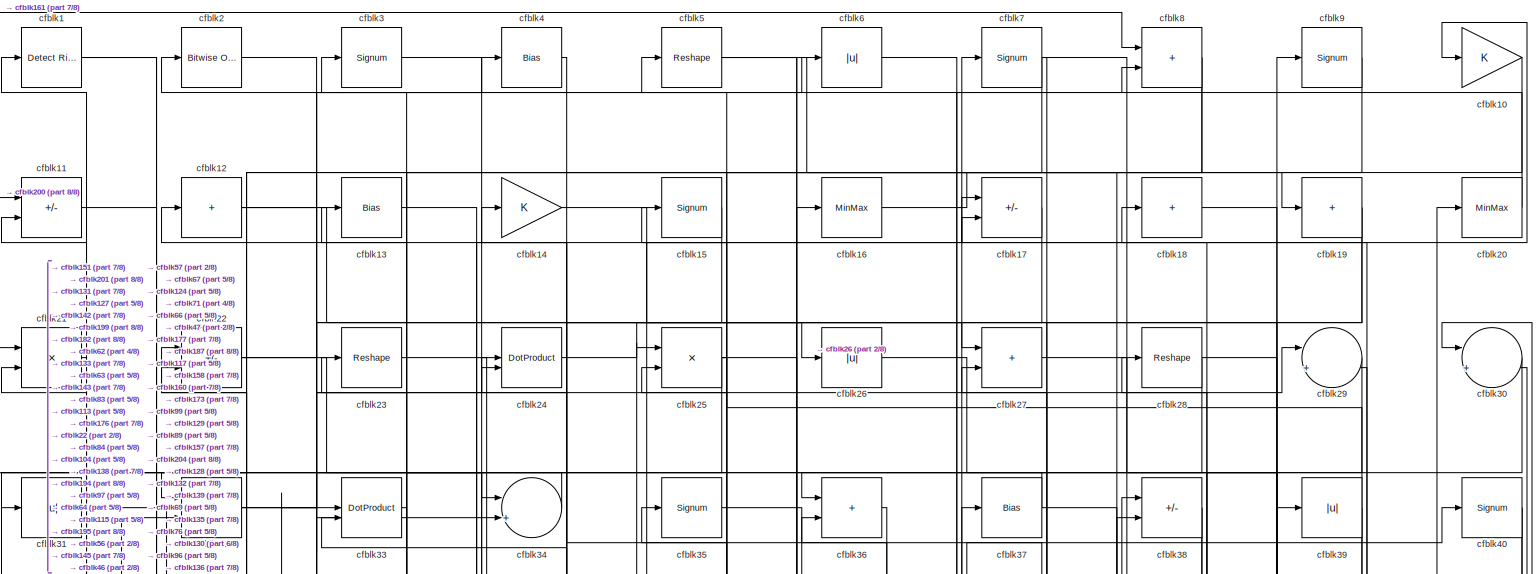
[diagram: root canvas - part 1/8, full width, top band]
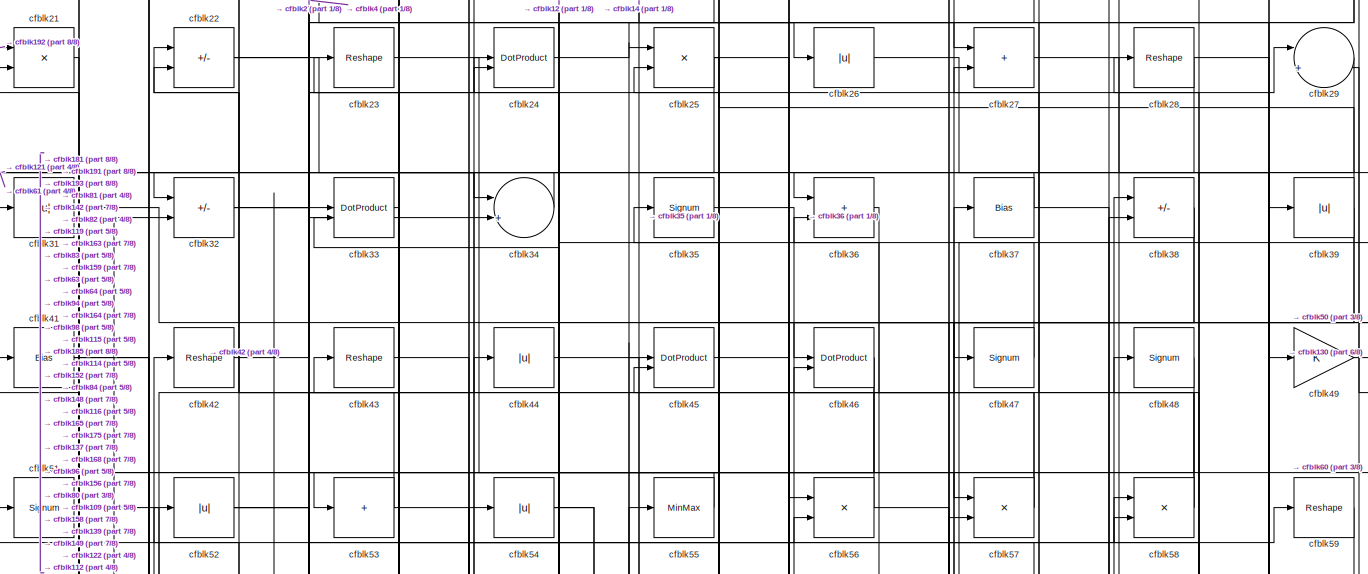
[diagram: root canvas - part 2/8, full width, top band]
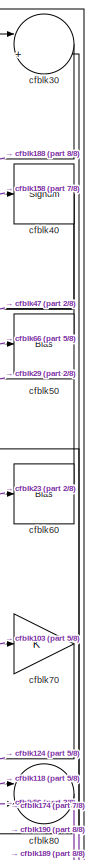
[diagram: root canvas - part 3/8, top right region]
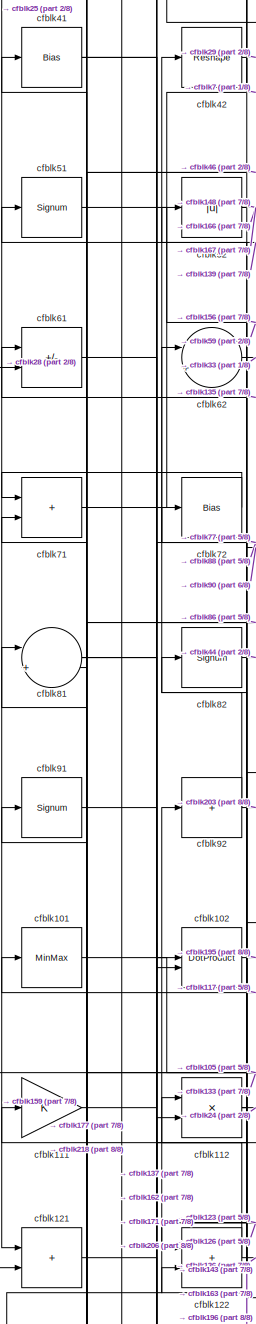
[diagram: root canvas - part 4/8, middle left region]
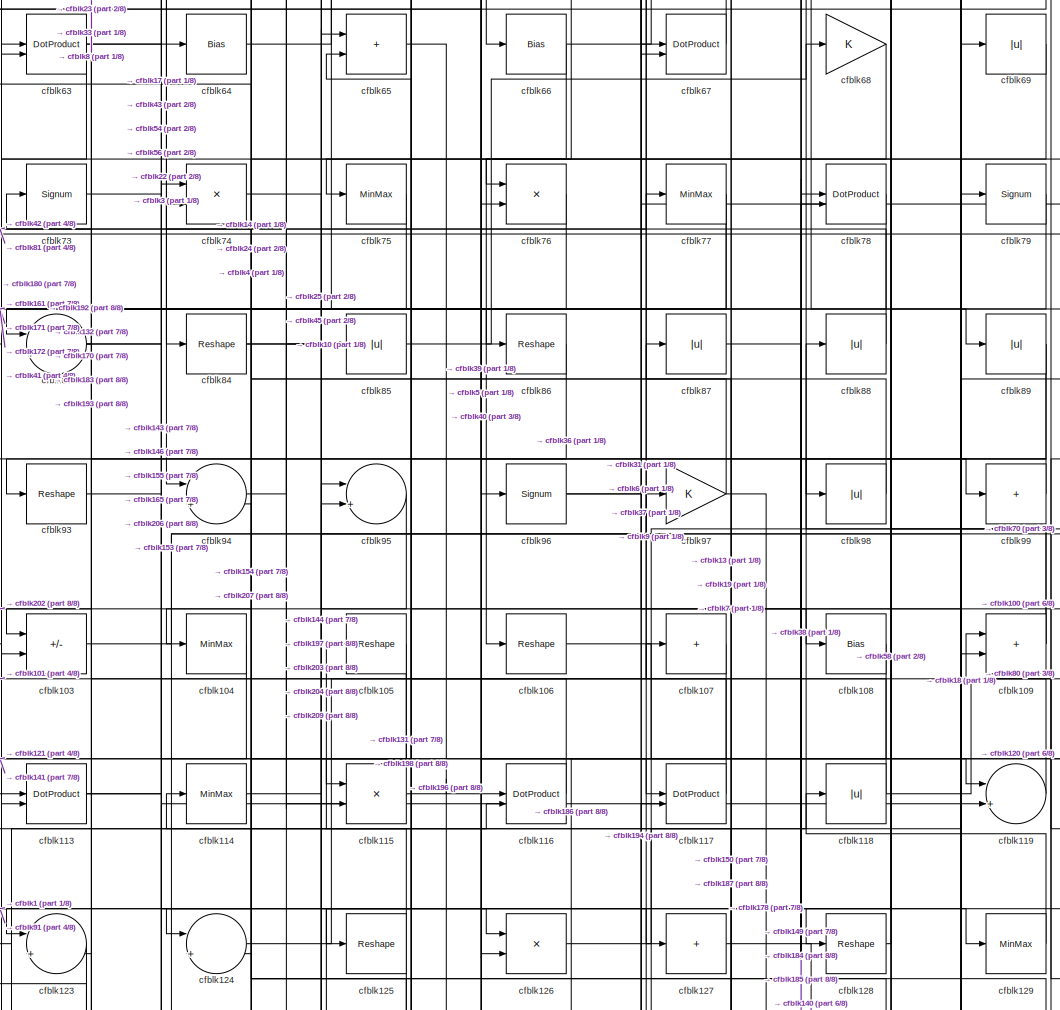
[diagram: root canvas - part 5/8, central region]
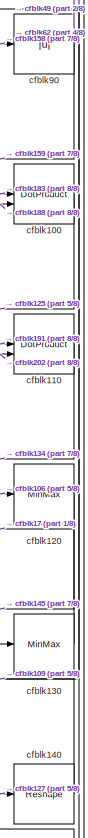
[diagram: root canvas - part 6/8, middle right region]
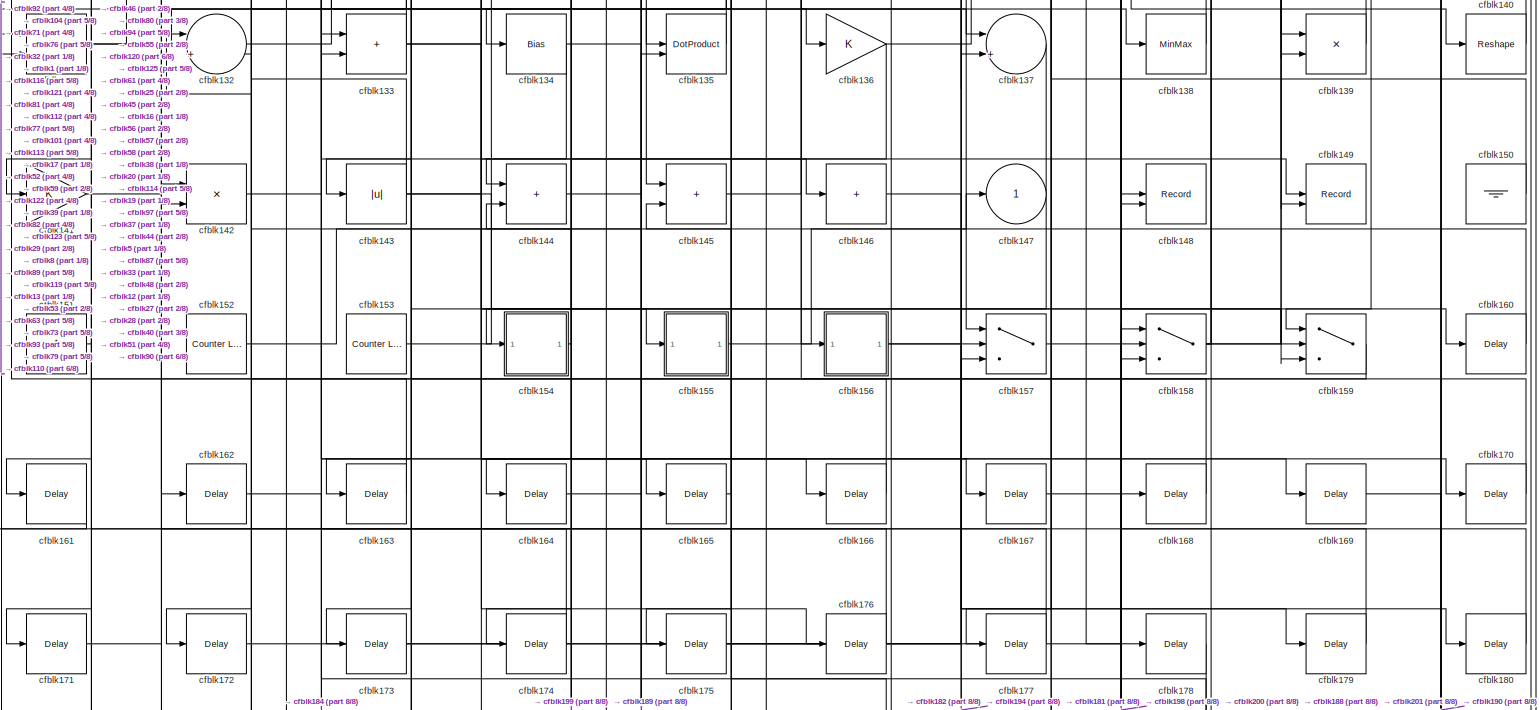
[diagram: root canvas - part 7/8, full width, bottom band]
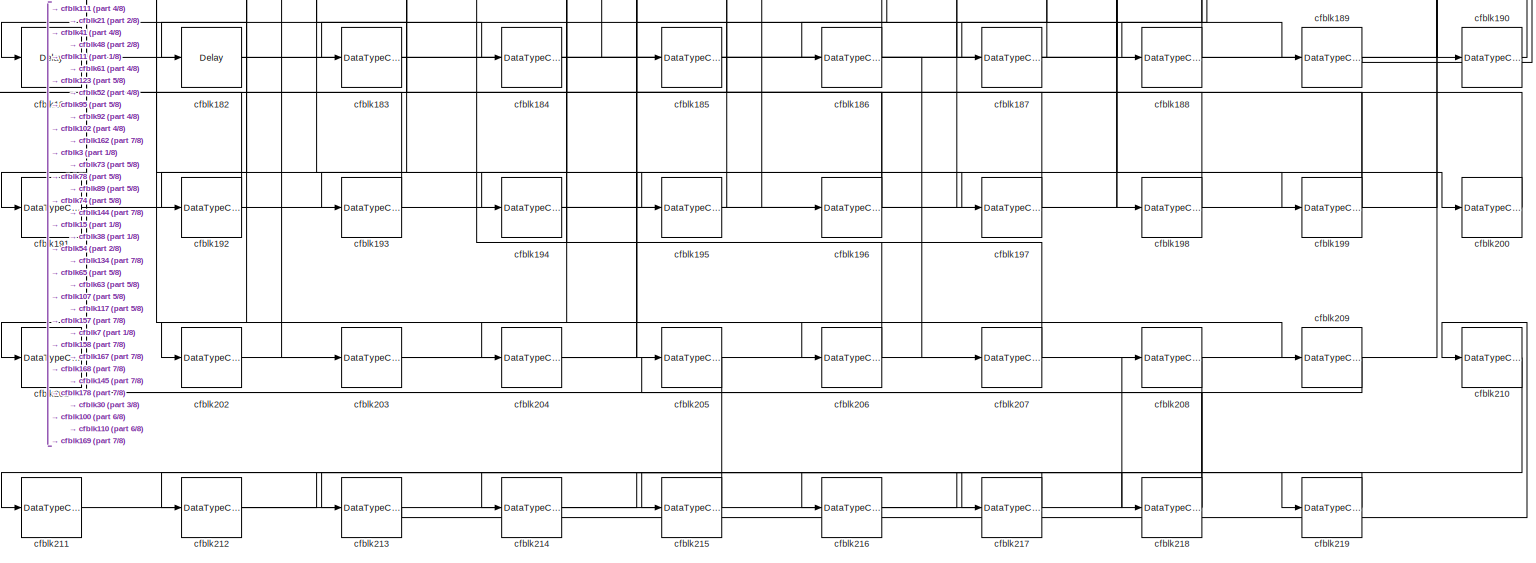
[diagram: root canvas - part 8/8, full width, bottom band]
MODEL slx_567b70e88bf7
KIND model
CONFIG AbsTol = auto
CONFIG EnableMultiTasking = off
CONFIG FixedStep = auto
CONFIG MaxStep = auto
CONFIG MinStep = auto
CONFIG RelTol = 1e-3
CONFIG SampleTimeConstraint = Unconstrained
CONFIG SolverName = VariableStepAuto
CONFIG StartTime = 0.0
CONFIG StopTime = 10.0
BLOCK [Reference] cfblk1  REF=hdlsllib/Logic and Bit
Operations/Detect Rise
Positive
  SourceBlock = hdlsllib/Logic and Bit\nOperations/Detect Rise\nPositive
  SourceType = Detect Rise Positive
BLOCK [Gain] cfblk10
BLOCK [DotProduct] cfblk100
  OutDataTypeStr = Inherit: Inherit via internal rule
BLOCK [MinMax] cfblk101
BLOCK [DotProduct] cfblk102
  OutDataTypeStr = Inherit: Inherit via internal rule
BLOCK [Sum] cfblk103
  IconShape = rectangular
  Inputs = +-
BLOCK [MinMax] cfblk104
BLOCK [Reshape] cfblk105
BLOCK [Reshape] cfblk106
BLOCK [Sum] cfblk107
  IconShape = rectangular
  Inputs = +
BLOCK [Bias] cfblk108
  Bias = 0.0
  SaturateOnIntegerOverflow = off
BLOCK [Sum] cfblk109
  IconShape = rectangular
BLOCK [Sum] cfblk11
  IconShape = rectangular
  Inputs = +-
BLOCK [DotProduct] cfblk110
  OutDataTypeStr = Inherit: Inherit via internal rule
BLOCK [Gain] cfblk111
BLOCK [Product] cfblk112
  Inputs = */
  RndMeth = Zero
  SaturateOnIntegerOverflow = on
BLOCK [DotProduct] cfblk113
  OutDataTypeStr = Inherit: Inherit via internal rule
BLOCK [MinMax] cfblk114
BLOCK [Product] cfblk115
  Inputs = */
  RndMeth = Zero
  SaturateOnIntegerOverflow = on
BLOCK [DotProduct] cfblk116
  OutDataTypeStr = Inherit: Inherit via internal rule
BLOCK [DotProduct] cfblk117
  OutDataTypeStr = Inherit: Inherit via internal rule
BLOCK [Abs] cfblk118
  SaturateOnIntegerOverflow = off
BLOCK [Sum] cfblk119
  Inputs = |++
BLOCK [Sum] cfblk12
  IconShape = rectangular
  Inputs = +
BLOCK [MinMax] cfblk120
BLOCK [Sum] cfblk121
  IconShape = rectangular
BLOCK [Sum] cfblk122
  IconShape = rectangular
BLOCK [Sum] cfblk123
  Inputs = |++
BLOCK [Sum] cfblk124
  Inputs = |++
BLOCK [Reshape] cfblk125
BLOCK [Product] cfblk126
  Inputs = */
  RndMeth = Zero
  SaturateOnIntegerOverflow = on
BLOCK [Sum] cfblk127
  IconShape = rectangular
  Inputs = +
BLOCK [Reshape] cfblk128
BLOCK [MinMax] cfblk129
BLOCK [Bias] cfblk13
  Bias = 0.0
  SaturateOnIntegerOverflow = off
BLOCK [MinMax] cfblk130
BLOCK [Sum] cfblk131
  IconShape = rectangular
BLOCK [Sum] cfblk132
  Inputs = |++
BLOCK [Sum] cfblk133
  IconShape = rectangular
BLOCK [Bias] cfblk134
  Bias = 0.0
  SaturateOnIntegerOverflow = off
BLOCK [DotProduct] cfblk135
  OutDataTypeStr = Inherit: Inherit via internal rule
BLOCK [Gain] cfblk136
BLOCK [Sum] cfblk137
  Inputs = |++
BLOCK [MinMax] cfblk138
BLOCK [Product] cfblk139
  Inputs = */
  RndMeth = Zero
  SaturateOnIntegerOverflow = on
BLOCK [Gain] cfblk14
BLOCK [Reshape] cfblk140
BLOCK [Gain] cfblk141
BLOCK [Product] cfblk142
  Inputs = */
  RndMeth = Zero
  SaturateOnIntegerOverflow = on
BLOCK [Abs] cfblk143
  SaturateOnIntegerOverflow = off
BLOCK [Sum] cfblk144
  IconShape = rectangular
BLOCK [Sum] cfblk145
  IconShape = rectangular
BLOCK [Sum] cfblk146
  IconShape = rectangular
  Inputs = +
BLOCK [Outport] cfblk147
  VectorParamsAs1DForOutWhenUnconnected = off
BLOCK [Record] cfblk148
  CompatibilityTag = XY
  FileSettingsInternal = {"entries":[{"content":{"excelSettings":{"content":{},"type":"Streamout.ExcelSettings"}},"type":"Streamout.FileSettingStorage","uuid":""}],"packageUris":["http:\/\/schema.mathworks.com\/mf0\/streamout_blocks\/R2020a"],"version":"1.0"}
  Layout = [1 1]
  SignalsInternal = {"entries":[{"content":{"signals":[{"content":{"blockPath":[],"dimensions":[1],"domain":"","lineColor":"#a2142f","plots":[1],"port":1,"signalID":3280,"signalName":"XY Graph:1"},"type":"RecordBlkView.Signal","uuid":""},{"content":{"blockPath":[],"dimensions":[1],"domain":"","lineColor":"#139fff","plots":[1],"port":2,"signalID":3283,"signalName":"XY Graph:2"},"type":"RecordBlkView.Signal","uuid":""}...<+146ch>
  VisualizationBindings = {"xyplotplugin":{"info":[{"series":[{"bindingParametersList":[{"parameter":"X-Axis","signalID":3280,"signalName":"XY Graph:1"},{"parameter":"Y-Axis","signalID":3283,"signalName":"XY Graph:2"}],"seriesID":52436}],"subplotID":1}]}}
  st = -1
BLOCK [Record] cfblk149
  CompatibilityTag = XY
  FileSettingsInternal = {"entries":[{"content":{"excelSettings":{"content":{},"type":"Streamout.ExcelSettings"}},"type":"Streamout.FileSettingStorage","uuid":""}],"packageUris":["http:\/\/schema.mathworks.com\/mf0\/streamout_blocks\/R2020a"],"version":"1.0"}
  Layout = [1 1]
  SignalsInternal = {"entries":[{"content":{"signals":[{"content":{"blockPath":[],"dimensions":[1],"domain":"","lineColor":"#a2142f","plots":[1],"port":1,"signalID":3288,"signalName":"XY Graph:1"},"type":"RecordBlkView.Signal","uuid":""},{"content":{"blockPath":[],"dimensions":[1],"domain":"","lineColor":"#139fff","plots":[1],"port":2,"signalID":3291,"signalName":"XY Graph:2"},"type":"RecordBlkView.Signal","uuid":""}...<+146ch>
  VisualizationBindings = {"xyplotplugin":{"info":[{"series":[{"bindingParametersList":[{"parameter":"X-Axis","signalID":3288,"signalName":"XY Graph:1"},{"parameter":"Y-Axis","signalID":3291,"signalName":"XY Graph:2"}],"seriesID":62969}],"subplotID":1}]}}
  st = -1
BLOCK [Signum] cfblk15
BLOCK [Ground] cfblk150
BLOCK [Constant] cfblk151
  SampleTime = -1
BLOCK [Reference] cfblk152  REF=hdlsllib/Sources/Counter
Limited
  SourceBlock = hdlsllib/Sources/Counter\nLimited
  SourceType = Counter Limited
BLOCK [Reference] cfblk153  REF=hdlsllib/Sources/Counter
Limited
  SourceBlock = hdlsllib/Sources/Counter\nLimited
  SourceType = Counter Limited
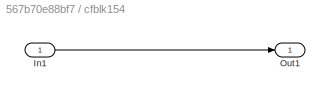
BLOCK [SubSystem] cfblk154
  LibrarySourceBlock = hdlsllib/Ports &\nSubsystems/Subsystem
BLOCK [Inport] cfblk154/In1
BLOCK [Outport] cfblk154/Out1
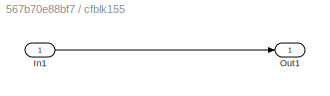
BLOCK [SubSystem] cfblk155
  LibrarySourceBlock = hdlsllib/Ports &\nSubsystems/Subsystem
BLOCK [Inport] cfblk155/In1
BLOCK [Outport] cfblk155/Out1
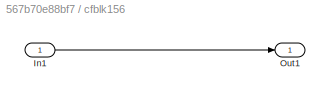
BLOCK [SubSystem] cfblk156
  LibrarySourceBlock = hdlsllib/Ports &\nSubsystems/Subsystem
BLOCK [Inport] cfblk156/In1
BLOCK [Outport] cfblk156/Out1
BLOCK [Switch] cfblk157
  InputSameDT = off
  SaturateOnIntegerOverflow = off
BLOCK [Switch] cfblk158
  InputSameDT = off
  SaturateOnIntegerOverflow = off
BLOCK [Switch] cfblk159
  InputSameDT = off
  SaturateOnIntegerOverflow = off
BLOCK [MinMax] cfblk16
BLOCK [Delay] cfblk160
  InputPortMap = u0
  SampleTime = 1
BLOCK [Delay] cfblk161
  InputPortMap = u0
  SampleTime = 1
BLOCK [Delay] cfblk162
  InputPortMap = u0
  SampleTime = 1
BLOCK [Delay] cfblk163
  InputPortMap = u0
  SampleTime = 1
BLOCK [Delay] cfblk164
  InputPortMap = u0
  SampleTime = 1
BLOCK [Delay] cfblk165
  InputPortMap = u0
  SampleTime = 1
BLOCK [Delay] cfblk166
  InputPortMap = u0
  SampleTime = 1
BLOCK [Delay] cfblk167
  InputPortMap = u0
  SampleTime = 1
BLOCK [Delay] cfblk168
  InputPortMap = u0
  SampleTime = 1
BLOCK [Delay] cfblk169
  InputPortMap = u0
  SampleTime = 1
BLOCK [Sum] cfblk17
  IconShape = rectangular
  Inputs = +-
BLOCK [Delay] cfblk170
  InputPortMap = u0
  SampleTime = 1
BLOCK [Delay] cfblk171
  InputPortMap = u0
  SampleTime = 1
BLOCK [Delay] cfblk172
  InputPortMap = u0
  SampleTime = 1
BLOCK [Delay] cfblk173
  InputPortMap = u0
  SampleTime = 1
BLOCK [Delay] cfblk174
  InputPortMap = u0
  SampleTime = 1
BLOCK [Delay] cfblk175
  InputPortMap = u0
  SampleTime = 1
BLOCK [Delay] cfblk176
  InputPortMap = u0
  SampleTime = 1
BLOCK [Delay] cfblk177
  InputPortMap = u0
  SampleTime = 1
BLOCK [Delay] cfblk178
  InputPortMap = u0
  SampleTime = 1
BLOCK [Delay] cfblk179
  InputPortMap = u0
  SampleTime = 1
BLOCK [Sum] cfblk18
  IconShape = rectangular
  Inputs = +
BLOCK [Delay] cfblk180
  InputPortMap = u0
  SampleTime = 1
BLOCK [Delay] cfblk181
  InputPortMap = u0
  SampleTime = 1
BLOCK [Delay] cfblk182
  InputPortMap = u0
  SampleTime = 1
BLOCK [DataTypeConversion] cfblk183
  OutDataTypeStr = uint8
  RndMeth = Floor
  SaturateOnIntegerOverflow = off
BLOCK [DataTypeConversion] cfblk184
  OutDataTypeStr = uint8
  RndMeth = Floor
  SaturateOnIntegerOverflow = off
BLOCK [DataTypeConversion] cfblk185
  OutDataTypeStr = uint8
  RndMeth = Floor
  SaturateOnIntegerOverflow = off
BLOCK [DataTypeConversion] cfblk186
  RndMeth = Floor
  SaturateOnIntegerOverflow = off
BLOCK [DataTypeConversion] cfblk187
  OutDataTypeStr = uint8
  RndMeth = Floor
  SaturateOnIntegerOverflow = off
BLOCK [DataTypeConversion] cfblk188
  RndMeth = Floor
  SaturateOnIntegerOverflow = off
BLOCK [DataTypeConversion] cfblk189
  OutDataTypeStr = uint8
  RndMeth = Floor
  SaturateOnIntegerOverflow = off
BLOCK [Sum] cfblk19
  IconShape = rectangular
  Inputs = +
BLOCK [DataTypeConversion] cfblk190
  OutDataTypeStr = uint8
  RndMeth = Floor
  SaturateOnIntegerOverflow = off
BLOCK [DataTypeConversion] cfblk191
  OutDataTypeStr = uint8
  RndMeth = Floor
  SaturateOnIntegerOverflow = off
BLOCK [DataTypeConversion] cfblk192
  OutDataTypeStr = uint8
  RndMeth = Floor
  SaturateOnIntegerOverflow = off
BLOCK [DataTypeConversion] cfblk193
  OutDataTypeStr = uint8
  RndMeth = Floor
  SaturateOnIntegerOverflow = off
BLOCK [DataTypeConversion] cfblk194
  RndMeth = Floor
  SaturateOnIntegerOverflow = off
BLOCK [DataTypeConversion] cfblk195
  OutDataTypeStr = uint8
  RndMeth = Floor
  SaturateOnIntegerOverflow = off
BLOCK [DataTypeConversion] cfblk196
  RndMeth = Floor
  SaturateOnIntegerOverflow = off
BLOCK [DataTypeConversion] cfblk197
  OutDataTypeStr = uint8
  RndMeth = Floor
  SaturateOnIntegerOverflow = off
BLOCK [DataTypeConversion] cfblk198
  OutDataTypeStr = uint8
  RndMeth = Floor
  SaturateOnIntegerOverflow = off
BLOCK [DataTypeConversion] cfblk199
  RndMeth = Floor
  SaturateOnIntegerOverflow = off
BLOCK [Reference] cfblk2  REF=simulink/Logic and Bit
Operations/Bitwise
Operator
  LibrarySourceBlock = hdlsllib/Logic and Bit\nOperations/Bitwise\nOperator
  SourceBlock = simulink/Logic and Bit\nOperations/Bitwise\nOperator
  SourceType = Bitwise Operator
BLOCK [MinMax] cfblk20
BLOCK [DataTypeConversion] cfblk200
  OutDataTypeStr = uint8
  RndMeth = Floor
  SaturateOnIntegerOverflow = off
BLOCK [DataTypeConversion] cfblk201
  OutDataTypeStr = uint8
  RndMeth = Floor
  SaturateOnIntegerOverflow = off
BLOCK [DataTypeConversion] cfblk202
  OutDataTypeStr = uint8
  RndMeth = Floor
  SaturateOnIntegerOverflow = off
BLOCK [DataTypeConversion] cfblk203
  OutDataTypeStr = uint8
  RndMeth = Floor
  SaturateOnIntegerOverflow = off
BLOCK [DataTypeConversion] cfblk204
  OutDataTypeStr = uint8
  RndMeth = Floor
  SaturateOnIntegerOverflow = off
BLOCK [DataTypeConversion] cfblk205
  RndMeth = Floor
  SaturateOnIntegerOverflow = off
BLOCK [DataTypeConversion] cfblk206
  OutDataTypeStr = uint8
  RndMeth = Floor
  SaturateOnIntegerOverflow = off
BLOCK [DataTypeConversion] cfblk207
  OutDataTypeStr = uint8
  RndMeth = Floor
  SaturateOnIntegerOverflow = off
BLOCK [DataTypeConversion] cfblk208
  RndMeth = Floor
  SaturateOnIntegerOverflow = off
BLOCK [DataTypeConversion] cfblk209
  OutDataTypeStr = uint8
  RndMeth = Floor
  SaturateOnIntegerOverflow = off
BLOCK [Product] cfblk21
  Inputs = */
  RndMeth = Zero
  SaturateOnIntegerOverflow = on
BLOCK [DataTypeConversion] cfblk210
  RndMeth = Floor
  SaturateOnIntegerOverflow = off
BLOCK [DataTypeConversion] cfblk211
  OutDataTypeStr = uint8
  RndMeth = Floor
  SaturateOnIntegerOverflow = off
BLOCK [DataTypeConversion] cfblk212
  RndMeth = Floor
  SaturateOnIntegerOverflow = off
BLOCK [DataTypeConversion] cfblk213
  OutDataTypeStr = uint8
  RndMeth = Floor
  SaturateOnIntegerOverflow = off
BLOCK [DataTypeConversion] cfblk214
  RndMeth = Floor
  SaturateOnIntegerOverflow = off
BLOCK [DataTypeConversion] cfblk215
  OutDataTypeStr = uint8
  RndMeth = Floor
  SaturateOnIntegerOverflow = off
BLOCK [DataTypeConversion] cfblk216
  RndMeth = Floor
  SaturateOnIntegerOverflow = off
BLOCK [DataTypeConversion] cfblk217
  OutDataTypeStr = uint8
  RndMeth = Floor
  SaturateOnIntegerOverflow = off
BLOCK [DataTypeConversion] cfblk218
  RndMeth = Floor
  SaturateOnIntegerOverflow = off
BLOCK [DataTypeConversion] cfblk219
  OutDataTypeStr = uint8
  RndMeth = Floor
  SaturateOnIntegerOverflow = off
BLOCK [Sum] cfblk22
  IconShape = rectangular
  Inputs = +-
BLOCK [Reshape] cfblk23
BLOCK [DotProduct] cfblk24
  OutDataTypeStr = Inherit: Inherit via internal rule
BLOCK [Product] cfblk25
  Inputs = */
  RndMeth = Zero
  SaturateOnIntegerOverflow = on
BLOCK [Abs] cfblk26
  SaturateOnIntegerOverflow = off
BLOCK [Sum] cfblk27
  IconShape = rectangular
BLOCK [Reshape] cfblk28
BLOCK [Sum] cfblk29
  Inputs = |++
BLOCK [Signum] cfblk3
BLOCK [Sum] cfblk30
  Inputs = |++
BLOCK [Abs] cfblk31
  SaturateOnIntegerOverflow = off
BLOCK [Sum] cfblk32
  IconShape = rectangular
  Inputs = +-
BLOCK [DotProduct] cfblk33
  OutDataTypeStr = Inherit: Inherit via internal rule
BLOCK [Sum] cfblk34
  Inputs = |++
BLOCK [Signum] cfblk35
BLOCK [Sum] cfblk36
  IconShape = rectangular
BLOCK [Bias] cfblk37
  Bias = 0.0
  SaturateOnIntegerOverflow = off
BLOCK [Sum] cfblk38
  IconShape = rectangular
  Inputs = +-
BLOCK [Abs] cfblk39
  SaturateOnIntegerOverflow = off
BLOCK [Bias] cfblk4
  Bias = 0.0
  SaturateOnIntegerOverflow = off
BLOCK [Signum] cfblk40
BLOCK [Bias] cfblk41
  Bias = 0.0
  SaturateOnIntegerOverflow = off
BLOCK [Reshape] cfblk42
BLOCK [Reshape] cfblk43
BLOCK [Abs] cfblk44
  SaturateOnIntegerOverflow = off
BLOCK [DotProduct] cfblk45
  OutDataTypeStr = Inherit: Inherit via internal rule
BLOCK [DotProduct] cfblk46
  OutDataTypeStr = Inherit: Inherit via internal rule
BLOCK [Signum] cfblk47
BLOCK [Signum] cfblk48
BLOCK [Gain] cfblk49
BLOCK [Reshape] cfblk5
BLOCK [Bias] cfblk50
  Bias = 0.0
  SaturateOnIntegerOverflow = off
BLOCK [Signum] cfblk51
BLOCK [Abs] cfblk52
  SaturateOnIntegerOverflow = off
BLOCK [Sum] cfblk53
  IconShape = rectangular
  Inputs = +
BLOCK [Abs] cfblk54
  SaturateOnIntegerOverflow = off
BLOCK [MinMax] cfblk55
BLOCK [Product] cfblk56
  Inputs = */
  RndMeth = Zero
  SaturateOnIntegerOverflow = on
BLOCK [Product] cfblk57
  Inputs = */
  RndMeth = Zero
  SaturateOnIntegerOverflow = on
BLOCK [Product] cfblk58
  Inputs = */
  RndMeth = Zero
  SaturateOnIntegerOverflow = on
BLOCK [Reshape] cfblk59
BLOCK [Abs] cfblk6
  SaturateOnIntegerOverflow = off
BLOCK [Bias] cfblk60
  Bias = 0.0
  SaturateOnIntegerOverflow = off
BLOCK [Sum] cfblk61
  IconShape = rectangular
  Inputs = +-
BLOCK [Sum] cfblk62
  Inputs = |++
BLOCK [DotProduct] cfblk63
  OutDataTypeStr = Inherit: Inherit via internal rule
BLOCK [Bias] cfblk64
  Bias = 0.0
  SaturateOnIntegerOverflow = off
BLOCK [Sum] cfblk65
  IconShape = rectangular
BLOCK [Bias] cfblk66
  Bias = 0.0
  SaturateOnIntegerOverflow = off
BLOCK [DotProduct] cfblk67
  OutDataTypeStr = Inherit: Inherit via internal rule
BLOCK [Gain] cfblk68
BLOCK [Abs] cfblk69
  SaturateOnIntegerOverflow = off
BLOCK [Signum] cfblk7
BLOCK [Gain] cfblk70
BLOCK [Sum] cfblk71
  IconShape = rectangular
BLOCK [Bias] cfblk72
  Bias = 0.0
  SaturateOnIntegerOverflow = off
BLOCK [Signum] cfblk73
BLOCK [Product] cfblk74
  Inputs = */
  RndMeth = Zero
  SaturateOnIntegerOverflow = on
BLOCK [MinMax] cfblk75
BLOCK [Product] cfblk76
  Inputs = */
  RndMeth = Zero
  SaturateOnIntegerOverflow = on
BLOCK [MinMax] cfblk77
BLOCK [DotProduct] cfblk78
  OutDataTypeStr = Inherit: Inherit via internal rule
BLOCK [Signum] cfblk79
BLOCK [Sum] cfblk8
  IconShape = rectangular
BLOCK [Sum] cfblk80
  Inputs = |++
BLOCK [Sum] cfblk81
  Inputs = |++
BLOCK [Signum] cfblk82
BLOCK [Sum] cfblk83
  Inputs = |++
BLOCK [Reshape] cfblk84
BLOCK [Abs] cfblk85
  SaturateOnIntegerOverflow = off
BLOCK [Reshape] cfblk86
BLOCK [Abs] cfblk87
  SaturateOnIntegerOverflow = off
BLOCK [Abs] cfblk88
  SaturateOnIntegerOverflow = off
BLOCK [Abs] cfblk89
  SaturateOnIntegerOverflow = off
BLOCK [Signum] cfblk9
BLOCK [Abs] cfblk90
  SaturateOnIntegerOverflow = off
BLOCK [Signum] cfblk91
BLOCK [Sum] cfblk92
  IconShape = rectangular
  Inputs = +
BLOCK [Reshape] cfblk93
BLOCK [Sum] cfblk94
  Inputs = |++
BLOCK [Sum] cfblk95
  Inputs = |++
BLOCK [Signum] cfblk96
BLOCK [Gain] cfblk97
BLOCK [Abs] cfblk98
  SaturateOnIntegerOverflow = off
BLOCK [Sum] cfblk99
  IconShape = rectangular
  Inputs = +
LINE cfblk100:1 -> cfblk125:1
LINE cfblk101:1 -> cfblk133:1
LINE cfblk102:1 -> cfblk195:1
LINE cfblk103:1 -> cfblk70:1
LINE cfblk104:1 -> cfblk141:1
NET cfblk105:1 -> cfblk121:2, cfblk124:2
LINE cfblk106:1 -> cfblk120:1
LINE cfblk107:1 -> cfblk186:1
LINE cfblk108:1 -> cfblk126:2
NET cfblk109:1 -> cfblk58:2, cfblk88:1
LINE cfblk10:1 -> cfblk115:1
LINE cfblk110:1 -> cfblk134:1
LINE cfblk111:1 -> cfblk102:1
NET cfblk112:1 -> cfblk24:2, cfblk72:1
NET cfblk113:1 -> cfblk129:1, cfblk17:2
LINE cfblk114:1 -> cfblk25:1
LINE cfblk115:1 -> cfblk116:1
LINE cfblk116:1 -> cfblk25:2
LINE cfblk117:1 -> cfblk101:1
NET cfblk118:1 -> cfblk80:1, cfblk87:1
LINE cfblk119:1 -> cfblk43:1
LINE cfblk11:1 -> cfblk199:1
LINE cfblk120:1 -> cfblk145:1
LINE cfblk121:1 -> cfblk162:1
NET cfblk122:1 -> cfblk136:1, cfblk91:1
LINE cfblk123:1 -> cfblk192:1
LINE cfblk124:1 -> cfblk37:1
NET cfblk125:1 -> cfblk105:1, cfblk131:2
LINE cfblk126:1 -> cfblk118:1
LINE cfblk127:1 -> cfblk140:1
LINE cfblk128:1 -> cfblk18:1
LINE cfblk129:1 -> cfblk38:1
NET cfblk12:1 -> cfblk139:2, cfblk34:2
LINE cfblk130:1 -> cfblk17:1
NET cfblk131:1 -> cfblk138:1, cfblk32:2
LINE cfblk132:1 -> cfblk39:1
NET cfblk133:1 -> cfblk169:1, cfblk170:1, cfblk82:1
NET cfblk134:1 -> cfblk144:1, cfblk189:1
LINE cfblk135:1 -> cfblk61:1
NET cfblk136:1 -> cfblk154:1, cfblk20:1
LINE cfblk137:1 -> cfblk173:1
LINE cfblk138:1 -> cfblk33:2
LINE cfblk139:1 -> cfblk51:1
LINE cfblk13:1 -> cfblk176:1
LINE cfblk140:1 -> cfblk109:1
LINE cfblk141:1 -> cfblk116:2
LINE cfblk142:1 -> cfblk59:1
NET cfblk143:1 -> cfblk112:1, cfblk119:2, cfblk159:2
LINE cfblk144:1 -> cfblk97:1
LINE cfblk145:1 -> cfblk16:1
LINE cfblk146:1 -> cfblk179:1
LINE cfblk14:1 -> cfblk26:1
LINE cfblk150:1 -> cfblk114:1
LINE cfblk151:1 -> cfblk1:1
LINE cfblk152:1 -> cfblk55:1
LINE cfblk153:1 -> cfblk79:1
LINE cfblk154/In1:1 -> cfblk154/Out1:1
LINE cfblk154:1 -> cfblk94:2
LINE cfblk155/In1:1 -> cfblk155/Out1:1
LINE cfblk155:1 -> cfblk147:1
LINE cfblk156/In1:1 -> cfblk156/Out1:1
NET cfblk156:1 -> cfblk180:1, cfblk58:1
LINE cfblk157:1 -> cfblk200:1
NET cfblk158:1 -> cfblk28:1, cfblk40:1, cfblk48:1, cfblk90:1
LINE cfblk159:1 -> cfblk92:1
LINE cfblk15:1 -> cfblk194:1
LINE cfblk160:1 -> cfblk132:1
LINE cfblk161:1 -> cfblk8:1
LINE cfblk162:1 -> cfblk184:1
LINE cfblk163:1 -> cfblk122:2
LINE cfblk164:1 -> cfblk135:2
LINE cfblk165:1 -> cfblk45:2
LINE cfblk166:1 -> cfblk81:1
LINE cfblk167:1 -> cfblk198:1
LINE cfblk168:1 -> cfblk56:1
LINE cfblk169:1 -> cfblk190:1
LINE cfblk16:1 -> cfblk19:1
LINE cfblk170:1 -> cfblk123:2
LINE cfblk171:1 -> cfblk112:2
LINE cfblk172:1 -> cfblk157:2
LINE cfblk173:1 -> cfblk38:2
LINE cfblk174:1 -> cfblk131:1
LINE cfblk175:1 -> cfblk57:2
LINE cfblk176:1 -> cfblk142:1
LINE cfblk177:1 -> cfblk71:2
LINE cfblk178:1 -> cfblk201:1
LINE cfblk179:1 -> cfblk158:2
LINE cfblk17:1 -> cfblk133:2
LINE cfblk180:1 -> cfblk113:1
LINE cfblk181:1 -> cfblk158:1
LINE cfblk182:1 -> cfblk157:3
LINE cfblk183:1 -> cfblk100:1
LINE cfblk184:1 -> cfblk78:1
LINE cfblk185:1 -> cfblk78:2
NET cfblk186:1 -> cfblk207:1, cfblk63:1
LINE cfblk187:1 -> cfblk107:1
NET cfblk188:1 -> cfblk100:2, cfblk145:2
LINE cfblk189:1 -> cfblk30:1
LINE cfblk18:1 -> cfblk69:1
LINE cfblk190:1 -> cfblk30:2
LINE cfblk191:1 -> cfblk110:1
LINE cfblk192:1 -> cfblk21:1
LINE cfblk193:1 -> cfblk21:2
NET cfblk194:1 -> cfblk117:2, cfblk168:1, cfblk197:1
LINE cfblk195:1 -> cfblk15:1
NET cfblk196:1 -> cfblk52:1, cfblk73:1
LINE cfblk197:1 -> cfblk65:1
LINE cfblk198:1 -> cfblk65:2
NET cfblk199:1 -> cfblk144:2, cfblk3:1
NET cfblk19:1 -> cfblk177:1, cfblk63:2
NET cfblk1:1 -> cfblk127:1, cfblk142:2
LINE cfblk200:1 -> cfblk11:1
LINE cfblk201:1 -> cfblk11:2
LINE cfblk202:1 -> cfblk110:2
LINE cfblk203:1 -> cfblk95:1
LINE cfblk204:1 -> cfblk95:2
LINE cfblk205:1 -> cfblk211:1
LINE cfblk206:1 -> cfblk74:1
LINE cfblk207:1 -> cfblk74:2
LINE cfblk208:1 -> cfblk213:1
LINE cfblk209:1 -> cfblk205:1
LINE cfblk20:1 -> cfblk2:1
LINE cfblk210:1 -> cfblk215:1
LINE cfblk211:1 -> cfblk208:1
LINE cfblk212:1 -> cfblk217:1
LINE cfblk213:1 -> cfblk210:1
LINE cfblk214:1 -> cfblk219:1
LINE cfblk215:1 -> cfblk212:1
LINE cfblk216:1 -> cfblk218:1
LINE cfblk217:1 -> cfblk214:1
NET cfblk218:1 -> cfblk111:1, cfblk41:1
LINE cfblk219:1 -> cfblk216:1
LINE cfblk21:1 -> cfblk191:1
NET cfblk22:1 -> cfblk4:1, cfblk94:1
LINE cfblk23:1 -> cfblk60:1
LINE cfblk24:1 -> cfblk27:1
NET cfblk25:1 -> cfblk121:1, cfblk137:1, cfblk175:1
LINE cfblk26:1 -> cfblk49:1
LINE cfblk27:1 -> cfblk149:2
NET cfblk28:1 -> cfblk139:1, cfblk61:2
LINE cfblk29:1 -> cfblk163:1
LINE cfblk2:1 -> cfblk57:1
LINE cfblk30:1 -> cfblk188:1
LINE cfblk31:1 -> cfblk67:2
NET cfblk32:1 -> cfblk34:1, cfblk6:1
LINE cfblk33:1 -> cfblk83:1
LINE cfblk34:1 -> cfblk31:1
LINE cfblk35:1 -> cfblk46:1
LINE cfblk36:1 -> cfblk76:1
NET cfblk37:1 -> cfblk160:1, cfblk36:1
NET cfblk38:1 -> cfblk157:1, cfblk204:1
NET cfblk39:1 -> cfblk135:1, cfblk5:1, cfblk76:2
LINE cfblk3:1 -> cfblk84:1
NET cfblk40:1 -> cfblk50:1, cfblk66:1
NET cfblk41:1 -> cfblk123:1, cfblk86:1
LINE cfblk42:1 -> cfblk29:1
LINE cfblk43:1 -> cfblk64:1
LINE cfblk44:1 -> cfblk148:1
LINE cfblk45:1 -> cfblk96:1
NET cfblk46:1 -> cfblk164:1, cfblk81:2
LINE cfblk47:1 -> cfblk12:1
LINE cfblk48:1 -> cfblk181:1
LINE cfblk49:1 -> cfblk130:1
LINE cfblk4:1 -> cfblk104:1
LINE cfblk50:1 -> cfblk47:1
LINE cfblk51:1 -> cfblk156:1
NET cfblk52:1 -> cfblk148:2, cfblk166:1, cfblk167:1
NET cfblk53:1 -> cfblk159:3, cfblk22:2
NET cfblk54:1 -> cfblk115:2, cfblk185:1
LINE cfblk55:1 -> cfblk53:1
NET cfblk56:1 -> cfblk35:1, cfblk80:2
NET cfblk57:1 -> cfblk22:1, cfblk36:2
NET cfblk58:1 -> cfblk27:2, cfblk46:2
LINE cfblk59:1 -> cfblk122:1
NET cfblk5:1 -> cfblk117:1, cfblk158:3, cfblk99:1
LINE cfblk60:1 -> cfblk29:2
LINE cfblk61:1 -> cfblk206:1
LINE cfblk62:1 -> cfblk33:1
NET cfblk63:1 -> cfblk103:2, cfblk155:1, cfblk54:1
LINE cfblk64:1 -> cfblk10:1
LINE cfblk65:1 -> cfblk196:1
NET cfblk66:1 -> cfblk75:1, cfblk9:1
LINE cfblk67:1 -> cfblk13:1
LINE cfblk68:1 -> cfblk113:2
LINE cfblk69:1 -> cfblk106:1
LINE cfblk6:1 -> cfblk67:1
LINE cfblk70:1 -> cfblk124:1
LINE cfblk71:1 -> cfblk7:1
LINE cfblk72:1 -> cfblk71:1
LINE cfblk73:1 -> cfblk165:1
LINE cfblk74:1 -> cfblk209:1
LINE cfblk75:1 -> cfblk93:1
LINE cfblk76:1 -> cfblk161:1
NET cfblk77:1 -> cfblk171:1, cfblk172:1
LINE cfblk78:1 -> cfblk183:1
LINE cfblk79:1 -> cfblk128:1
NET cfblk7:1 -> cfblk182:1, cfblk187:1, cfblk89:1
LINE cfblk80:1 -> cfblk174:1
NET cfblk81:1 -> cfblk102:2, cfblk137:2, cfblk77:1
LINE cfblk82:1 -> cfblk44:1
NET cfblk83:1 -> cfblk119:1, cfblk23:1, cfblk56:2
NET cfblk84:1 -> cfblk108:1, cfblk45:1
LINE cfblk85:1 -> cfblk68:1
LINE cfblk86:1 -> cfblk103:1
LINE cfblk87:1 -> cfblk149:1
LINE cfblk88:1 -> cfblk42:1
NET cfblk89:1 -> cfblk132:2, cfblk193:1
NET cfblk8:1 -> cfblk143:1, cfblk83:2
NET cfblk90:1 -> cfblk159:1, cfblk62:2
LINE cfblk91:1 -> cfblk126:1
NET cfblk92:1 -> cfblk203:1, cfblk62:1
LINE cfblk93:1 -> cfblk146:1
LINE cfblk94:1 -> cfblk85:1
LINE cfblk95:1 -> cfblk202:1
NET cfblk96:1 -> cfblk109:2, cfblk8:2
NET cfblk97:1 -> cfblk14:1, cfblk178:1
LINE cfblk98:1 -> cfblk24:1
LINE cfblk99:1 -> cfblk98:1
LINE cfblk9:1 -> cfblk32:1
note: NET lines group one-source signal fan-out (src -> all destinations, sorted); 1:1 wires keep LINE
